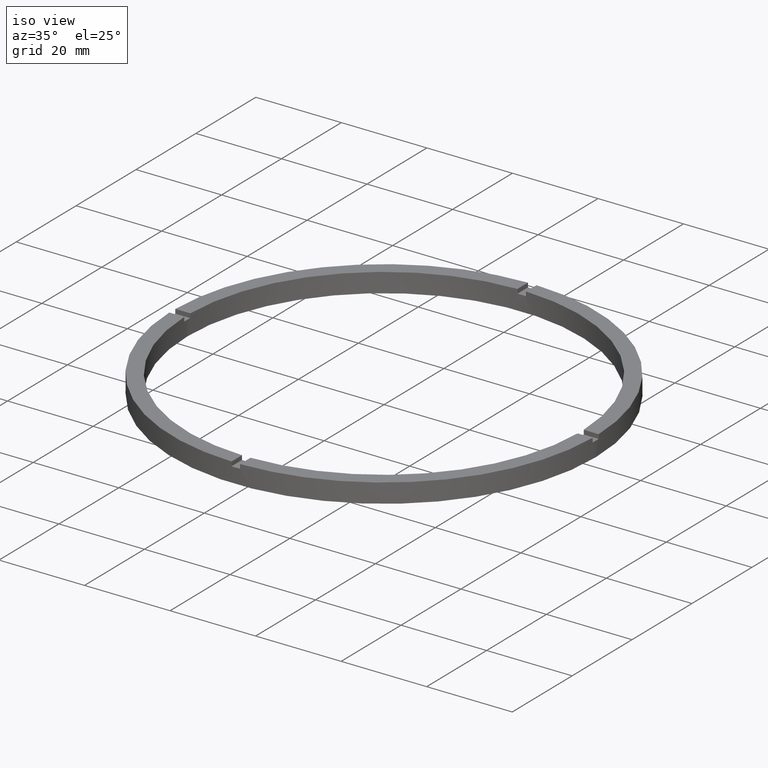
[diagram: clean part render]
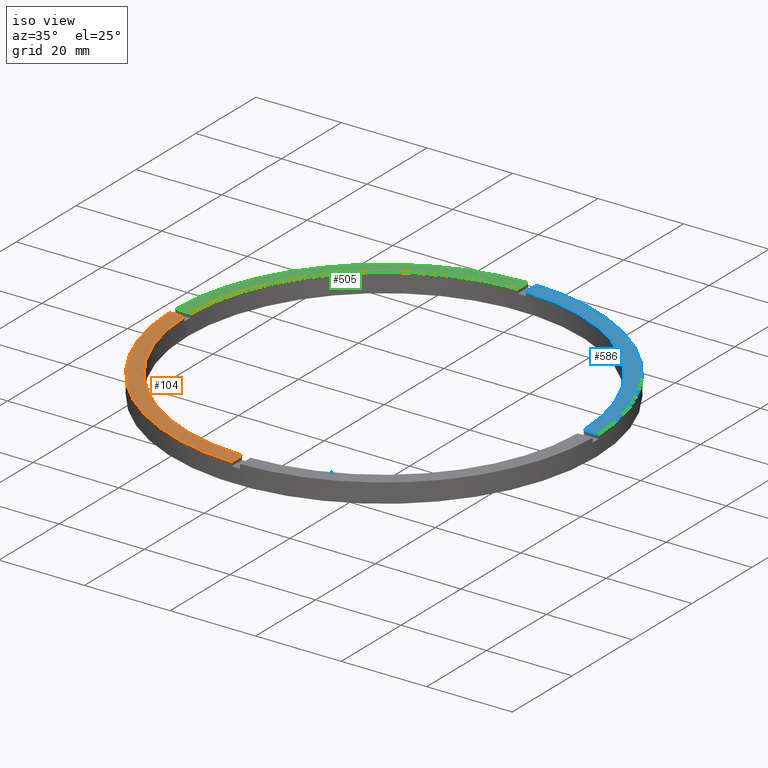
[diagram: same view with three faces highlighted in distinct colors, each labeled with its STEP entity id]
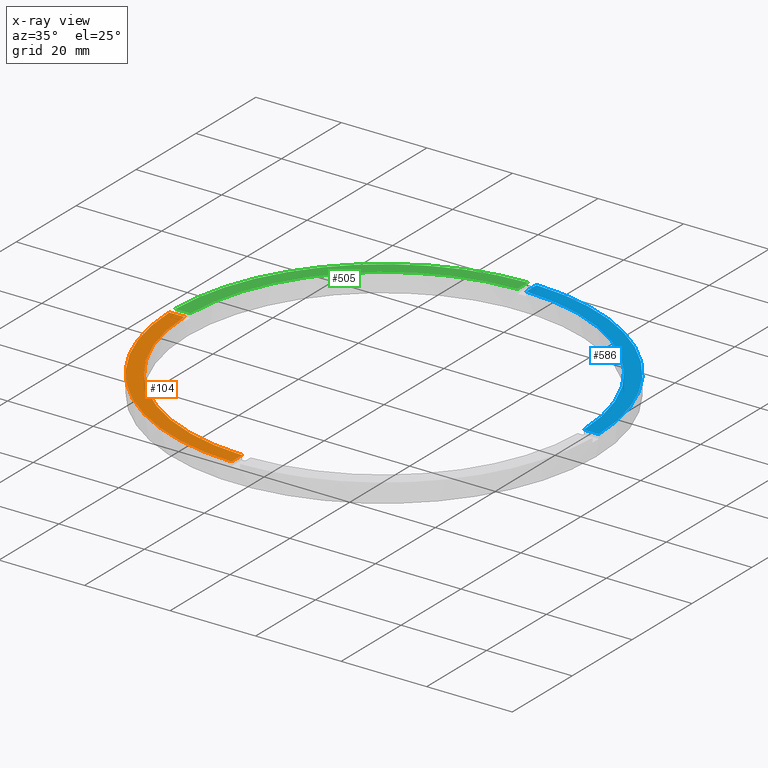
[diagram: x-ray of the same camera — body ghosted, the three highlighted faces saturated]
A machine part, iso view with three faces highlighted in distinct colors.
The next image is the same camera in x-ray (body ghosted, the three faces saturated) — at least one of them is partly hidden behind the body in this view.
Their STEP definitions:

[orange] entity #104 — the highlighted planar face has unit normal (0, 0, 1).
#7 = VERTEX_POINT ( 'NONE', #369 ) ;
#33 = ORIENTED_EDGE ( 'NONE', *, *, #686, .F. ) ;
#104 = ADVANCED_FACE ( 'NONE', ( #191 ), #208, .T. ) ;
#113 = DIRECTION ( 'NONE',  ( 1.000000000000000000, 0.000000000000000000, 0.000000000000000000 ) ) ;
#119 = EDGE_CURVE ( 'NONE', #424, #496, #193, .T. ) ;
#151 = EDGE_CURVE ( 'NONE', #7, #631, #453, .T. ) ;
#158 = CARTESIAN_POINT ( 'NONE',  ( 0.000000000000000000, 0.000000000000000000, 4.500000000000000000 ) ) ;
#176 = LINE ( 'NONE', #628, #180 ) ;
#180 = VECTOR ( 'NONE', #217, 1000.000000000000000 ) ;
#191 = FACE_OUTER_BOUND ( 'NONE', #627, .T. ) ;
#193 = CIRCLE ( 'NONE', #388, 49.50000000000000711 ) ;
#208 = PLANE ( 'NONE',  #276 ) ;
#217 = DIRECTION ( 'NONE',  ( 1.000000000000000000, 1.951563910473907735E-16, -0.000000000000000000 ) ) ;
#226 = CARTESIAN_POINT ( 'NONE',  ( -1.000000000000156986, -49.48989795907849043, 4.500000000000000000 ) ) ;
#232 = ORIENTED_EDGE ( 'NONE', *, *, #151, .F. ) ;
#235 = CARTESIAN_POINT ( 'NONE',  ( -1.000000000000158318, -39.50000000000018474, 4.500000000000000000 ) ) ;
#237 = ORIENTED_EDGE ( 'NONE', *, *, #278, .F. ) ;
#275 = DIRECTION ( 'NONE',  ( 1.000000000000000000, 0.000000000000000000, -0.000000000000000000 ) ) ;
#276 = AXIS2_PLACEMENT_3D ( 'NONE', #639, #344, #275 ) ;
#278 = EDGE_CURVE ( 'NONE', #631, #496, #401, .T. ) ;
#336 = DIRECTION ( 'NONE',  ( 0.000000000000000000, 0.000000000000000000, 1.000000000000000000 ) ) ;
#344 = DIRECTION ( 'NONE',  ( 0.000000000000000000, 0.000000000000000000, 1.000000000000000000 ) ) ;
#362 = ORIENTED_EDGE ( 'NONE', *, *, #119, .T. ) ;
#369 = CARTESIAN_POINT ( 'NONE',  ( -45.98912915026767223, -1.000000000000030420, 4.500000000000000000 ) ) ;
#388 = AXIS2_PLACEMENT_3D ( 'NONE', #432, #336, #512 ) ;
#401 = LINE ( 'NONE', #235, #660 ) ;
#424 = VERTEX_POINT ( 'NONE', #645 ) ;
#432 = CARTESIAN_POINT ( 'NONE',  ( 0.000000000000000000, 0.000000000000000000, 4.500000000000000000 ) ) ;
#453 = CIRCLE ( 'NONE', #715, 46.00000000000000000 ) ;
#467 = DIRECTION ( 'NONE',  ( 0.000000000000000000, 0.000000000000000000, 1.000000000000000000 ) ) ;
#496 = VERTEX_POINT ( 'NONE', #226 ) ;
#512 = DIRECTION ( 'NONE',  ( 1.000000000000000000, 0.000000000000000000, 0.000000000000000000 ) ) ;
#610 = CARTESIAN_POINT ( 'NONE',  ( -1.000000000000157430, -45.98912915026767223, 4.500000000000000000 ) ) ;
#627 = EDGE_LOOP ( 'NONE', ( #237, #232, #33, #362 ) ) ;
#628 = CARTESIAN_POINT ( 'NONE',  ( -39.50000000000019185, -1.000000000000029310, 4.500000000000000000 ) ) ;
#631 = VERTEX_POINT ( 'NONE', #610 ) ;
#639 = CARTESIAN_POINT ( 'NONE',  ( 0.000000000000000000, 0.000000000000000000, 4.500000000000000000 ) ) ;
#645 = CARTESIAN_POINT ( 'NONE',  ( -49.48989795907849043, -1.000000000000031308, 4.500000000000000000 ) ) ;
#660 = VECTOR ( 'NONE', #721, 1000.000000000000000 ) ;
#686 = EDGE_CURVE ( 'NONE', #424, #7, #176, .T. ) ;
#715 = AXIS2_PLACEMENT_3D ( 'NONE', #158, #467, #113 ) ;
#721 = DIRECTION ( 'NONE',  ( 1.301042606982605074E-16, -1.000000000000000000, 0.000000000000000000 ) ) ;

[blue] entity #586 — the highlighted planar face has unit normal (0, 0, 1).
#51 = CARTESIAN_POINT ( 'NONE',  ( 0.000000000000000000, 0.000000000000000000, 4.500000000000000000 ) ) ;
#65 = EDGE_CURVE ( 'NONE', #360, #742, #515, .T. ) ;
#94 = DIRECTION ( 'NONE',  ( 1.000000000000000000, 0.000000000000000000, -0.000000000000000000 ) ) ;
#117 = AXIS2_PLACEMENT_3D ( 'NONE', #700, #443, #145 ) ;
#145 = DIRECTION ( 'NONE',  ( 1.000000000000000000, 0.000000000000000000, 0.000000000000000000 ) ) ;
#147 = VERTEX_POINT ( 'NONE', #719 ) ;
#194 = VECTOR ( 'NONE', #775, 1000.000000000000000 ) ;
#200 = EDGE_CURVE ( 'NONE', #479, #147, #375, .T. ) ;
#212 = LINE ( 'NONE', #386, #194 ) ;
#253 = ORIENTED_EDGE ( 'NONE', *, *, #65, .F. ) ;
#257 = AXIS2_PLACEMENT_3D ( 'NONE', #598, #734, #554 ) ;
#298 = ORIENTED_EDGE ( 'NONE', *, *, #200, .T. ) ;
#360 = VERTEX_POINT ( 'NONE', #373 ) ;
#373 = CARTESIAN_POINT ( 'NONE',  ( 45.98912915026767934, 0.9999999999998445688, 4.500000000000000000 ) ) ;
#375 = CIRCLE ( 'NONE', #257, 49.50000000000000711 ) ;
#386 = CARTESIAN_POINT ( 'NONE',  ( 39.50000000000000000, 0.9999999999998441247, 4.500000000000000000 ) ) ;
#423 = ORIENTED_EDGE ( 'NONE', *, *, #612, .F. ) ;
#429 = LINE ( 'NONE', #702, #723 ) ;
#443 = DIRECTION ( 'NONE',  ( 0.000000000000000000, 0.000000000000000000, 1.000000000000000000 ) ) ;
#466 = AXIS2_PLACEMENT_3D ( 'NONE', #51, #679, #94 ) ;
#479 = VERTEX_POINT ( 'NONE', #520 ) ;
#489 = ORIENTED_EDGE ( 'NONE', *, *, #583, .F. ) ;
#515 = CIRCLE ( 'NONE', #117, 46.00000000000000000 ) ;
#520 = CARTESIAN_POINT ( 'NONE',  ( 49.48989795907849043, 0.9999999999998447908, 4.500000000000000000 ) ) ;
#554 = DIRECTION ( 'NONE',  ( 1.000000000000000000, 0.000000000000000000, 0.000000000000000000 ) ) ;
#560 = CARTESIAN_POINT ( 'NONE',  ( 0.9999999999999733546, 45.98912915026767223, 4.500000000000000000 ) ) ;
#583 = EDGE_CURVE ( 'NONE', #742, #147, #429, .T. ) ;
#586 = ADVANCED_FACE ( 'NONE', ( #707 ), #672, .T. ) ;
#598 = CARTESIAN_POINT ( 'NONE',  ( 0.000000000000000000, 0.000000000000000000, 4.500000000000000000 ) ) ;
#612 = EDGE_CURVE ( 'NONE', #479, #360, #212, .T. ) ;
#636 = DIRECTION ( 'NONE',  ( 0.000000000000000000, 1.000000000000000000, 0.000000000000000000 ) ) ;
#672 = PLANE ( 'NONE',  #466 ) ;
#679 = DIRECTION ( 'NONE',  ( 0.000000000000000000, 0.000000000000000000, 1.000000000000000000 ) ) ;
#700 = CARTESIAN_POINT ( 'NONE',  ( 0.000000000000000000, 0.000000000000000000, 4.500000000000000000 ) ) ;
#702 = CARTESIAN_POINT ( 'NONE',  ( 0.9999999999999733546, 39.50000000000000711, 4.500000000000000000 ) ) ;
#707 = FACE_OUTER_BOUND ( 'NONE', #769, .T. ) ;
#719 = CARTESIAN_POINT ( 'NONE',  ( 0.9999999999999733546, 49.48989795907849043, 4.500000000000000000 ) ) ;
#723 = VECTOR ( 'NONE', #636, 1000.000000000000000 ) ;
#734 = DIRECTION ( 'NONE',  ( 0.000000000000000000, 0.000000000000000000, 1.000000000000000000 ) ) ;
#742 = VERTEX_POINT ( 'NONE', #560 ) ;
#769 = EDGE_LOOP ( 'NONE', ( #489, #253, #423, #298 ) ) ;
#775 = DIRECTION ( 'NONE',  ( -1.000000000000000000, -6.505213034913025371E-17, -0.000000000000000000 ) ) ;

[green] entity #505 — the highlighted planar face has unit normal (0, 0, 1).
#30 = ORIENTED_EDGE ( 'NONE', *, *, #689, .F. ) ;
#36 = VERTEX_POINT ( 'NONE', #691 ) ;
#70 = CARTESIAN_POINT ( 'NONE',  ( 0.000000000000000000, 0.000000000000000000, 4.500000000000000000 ) ) ;
#81 = CARTESIAN_POINT ( 'NONE',  ( -1.000000000000026645, 49.48989795907849043, 4.500000000000000000 ) ) ;
#100 = DIRECTION ( 'NONE',  ( 1.000000000000000000, 0.000000000000000000, 0.000000000000000000 ) ) ;
#101 = AXIS2_PLACEMENT_3D ( 'NONE', #222, #745, #668 ) ;
#165 = ORIENTED_EDGE ( 'NONE', *, *, #327, .T. ) ;
#185 = LINE ( 'NONE', #619, #442 ) ;
#222 = CARTESIAN_POINT ( 'NONE',  ( 0.000000000000000000, 0.000000000000000000, 4.500000000000000000 ) ) ;
#239 = ORIENTED_EDGE ( 'NONE', *, *, #349, .F. ) ;
#297 = VERTEX_POINT ( 'NONE', #81 ) ;
#303 = ORIENTED_EDGE ( 'NONE', *, *, #651, .F. ) ;
#305 = DIRECTION ( 'NONE',  ( 1.000000000000000000, 0.000000000000000000, 0.000000000000000000 ) ) ;
#327 = EDGE_CURVE ( 'NONE', #297, #36, #673, .T. ) ;
#335 = DIRECTION ( 'NONE',  ( 0.000000000000000000, 0.000000000000000000, 1.000000000000000000 ) ) ;
#349 = EDGE_CURVE ( 'NONE', #297, #495, #438, .T. ) ;
#379 = EDGE_LOOP ( 'NONE', ( #239, #165, #30, #303 ) ) ;
#431 = PLANE ( 'NONE',  #101 ) ;
#438 = LINE ( 'NONE', #460, #708 ) ;
#439 = CIRCLE ( 'NONE', #736, 46.00000000000000000 ) ;
#442 = VECTOR ( 'NONE', #503, 1000.000000000000000 ) ;
#447 = FACE_OUTER_BOUND ( 'NONE', #379, .T. ) ;
#452 = CARTESIAN_POINT ( 'NONE',  ( 0.000000000000000000, 0.000000000000000000, 4.500000000000000000 ) ) ;
#460 = CARTESIAN_POINT ( 'NONE',  ( -1.000000000000026645, 39.50000000000000711, 4.500000000000000000 ) ) ;
#471 = VERTEX_POINT ( 'NONE', #526 ) ;
#495 = VERTEX_POINT ( 'NONE', #604 ) ;
#503 = DIRECTION ( 'NONE',  ( -1.000000000000000000, -1.951563910473907735E-16, 0.000000000000000000 ) ) ;
#505 = ADVANCED_FACE ( 'NONE', ( #447 ), #431, .T. ) ;
#526 = CARTESIAN_POINT ( 'NONE',  ( -45.98912915026767223, 0.9999999999999696909, 4.500000000000000000 ) ) ;
#588 = DIRECTION ( 'NONE',  ( -0.000000000000000000, -1.000000000000000000, -0.000000000000000000 ) ) ;
#604 = CARTESIAN_POINT ( 'NONE',  ( -1.000000000000026645, 45.98912915026767223, 4.500000000000000000 ) ) ;
#609 = AXIS2_PLACEMENT_3D ( 'NONE', #70, #682, #305 ) ;
#619 = CARTESIAN_POINT ( 'NONE',  ( -39.50000000000019185, 0.9999999999999708011, 4.500000000000000000 ) ) ;
#651 = EDGE_CURVE ( 'NONE', #495, #471, #439, .T. ) ;
#668 = DIRECTION ( 'NONE',  ( 1.000000000000000000, 0.000000000000000000, -0.000000000000000000 ) ) ;
#673 = CIRCLE ( 'NONE', #609, 49.50000000000000711 ) ;
#682 = DIRECTION ( 'NONE',  ( 0.000000000000000000, 0.000000000000000000, 1.000000000000000000 ) ) ;
#689 = EDGE_CURVE ( 'NONE', #471, #36, #185, .T. ) ;
#691 = CARTESIAN_POINT ( 'NONE',  ( -49.48989795907849043, 0.9999999999999688027, 4.500000000000000000 ) ) ;
#708 = VECTOR ( 'NONE', #588, 1000.000000000000000 ) ;
#736 = AXIS2_PLACEMENT_3D ( 'NONE', #452, #335, #100 ) ;
#745 = DIRECTION ( 'NONE',  ( 0.000000000000000000, 0.000000000000000000, 1.000000000000000000 ) ) ;